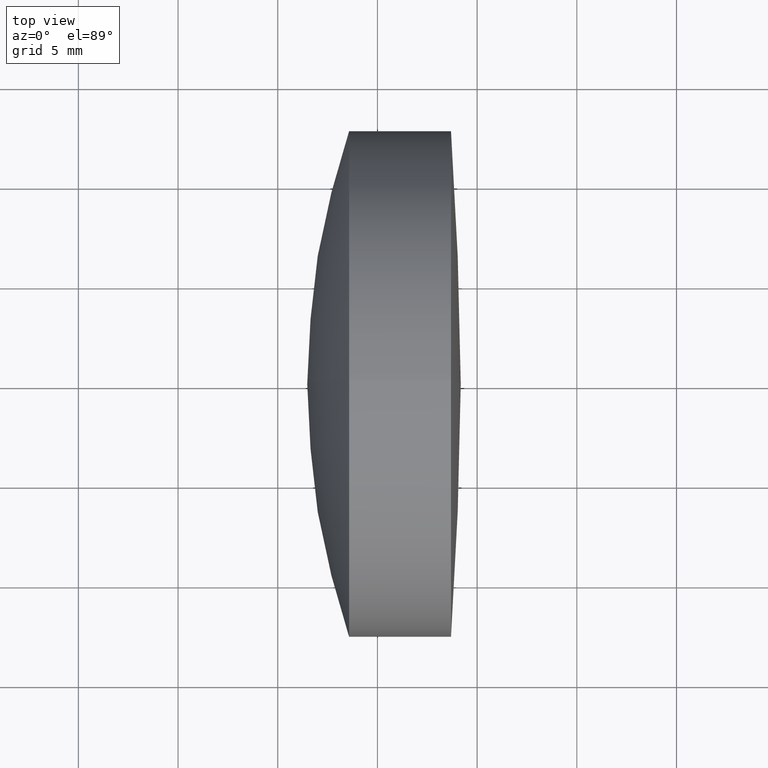
[diagram: clean part render]
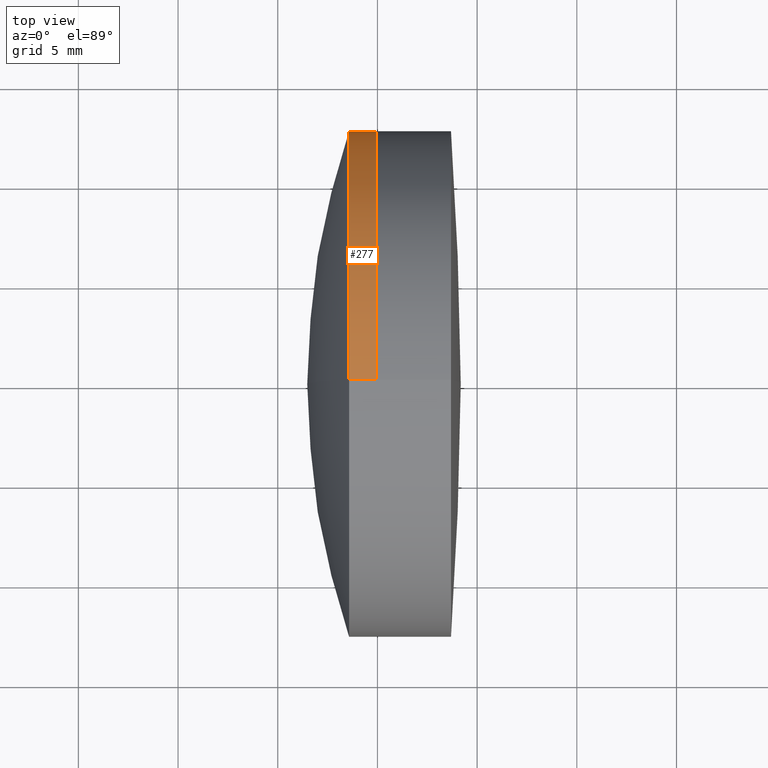
[diagram: same view with one face highlighted and labeled with its STEP entity id]
A machine part, top view. The second image highlights one B-rep face of the part: STEP entity #277.
In plain terms, the highlighted cylindrical surface (partial cylindrical patch) has radius 12.7 mm, axis along (-1, -0, -0).
Its self-contained STEP definition (entity closure, byte-faithful):
#6 = CARTESIAN_POINT ( 'NONE',  ( 294.9373187479075700, 1.555301434917139400E-015, -12.70000000000000800 ) ) ;
#30 = CARTESIAN_POINT ( 'NONE',  ( 294.9373187479075700, 0.0000000000000000000, 12.70000000000000800 ) ) ;
#38 = DIRECTION ( 'NONE',  ( -1.000000000000000000, -0.0000000000000000000, -0.0000000000000000000 ) ) ;
#51 = VERTEX_POINT ( 'NONE', #229 ) ;
#55 = CARTESIAN_POINT ( 'NONE',  ( 124.5233095260452400, 0.0000000000000000000, 0.0000000000000000000 ) ) ;
#57 = ORIENTED_EDGE ( 'NONE', *, *, #137, .T. ) ;
#58 = DIRECTION ( 'NONE',  ( -1.000000000000000000, -0.0000000000000000000, -0.0000000000000000000 ) ) ;
#59 = VERTEX_POINT ( 'NONE', #279 ) ;
#65 = DIRECTION ( 'NONE',  ( -1.000000000000000000, -0.0000000000000000000, -0.0000000000000000000 ) ) ;
#71 = EDGE_CURVE ( 'NONE', #59, #51, #306, .T. ) ;
#73 = EDGE_LOOP ( 'NONE', ( #153, #57, #133, #161 ) ) ;
#107 = AXIS2_PLACEMENT_3D ( 'NONE', #275, #249, #303 ) ;
#114 = CIRCLE ( 'NONE', #107, 12.70000000000000800 ) ;
#130 = VECTOR ( 'NONE', #58, 1000.000000000000000 ) ;
#132 = EDGE_CURVE ( 'NONE', #307, #59, #261, .T. ) ;
#133 = ORIENTED_EDGE ( 'NONE', *, *, #71, .F. ) ;
#134 = CYLINDRICAL_SURFACE ( 'NONE', #240, 12.70000000000000800 ) ;
#137 = EDGE_CURVE ( 'NONE', #187, #51, #323, .T. ) ;
#146 = EDGE_CURVE ( 'NONE', #307, #187, #114, .T. ) ;
#153 = ORIENTED_EDGE ( 'NONE', *, *, #146, .T. ) ;
#154 = FACE_OUTER_BOUND ( 'NONE', #73, .T. ) ;
#161 = ORIENTED_EDGE ( 'NONE', *, *, #132, .F. ) ;
#187 = VERTEX_POINT ( 'NONE', #6 ) ;
#188 = VECTOR ( 'NONE', #38, 1000.000000000000000 ) ;
#200 = CARTESIAN_POINT ( 'NONE',  ( 124.5233095260452400, 1.555301434917139400E-015, -12.70000000000000800 ) ) ;
#222 = DIRECTION ( 'NONE',  ( 0.0000000000000000000, 0.0000000000000000000, 1.000000000000000000 ) ) ;
#228 = CARTESIAN_POINT ( 'NONE',  ( 124.5233095260452400, 0.0000000000000000000, 12.70000000000000800 ) ) ;
#229 = CARTESIAN_POINT ( 'NONE',  ( 293.5774349548790400, 0.0000000000000000000, -12.69999999999999900 ) ) ;
#238 = DIRECTION ( 'NONE',  ( -1.000000000000000000, -0.0000000000000000000, -0.0000000000000000000 ) ) ;
#239 = DIRECTION ( 'NONE',  ( 0.0000000000000000000, 0.0000000000000000000, 1.000000000000000000 ) ) ;
#240 = AXIS2_PLACEMENT_3D ( 'NONE', #55, #238, #239 ) ;
#249 = DIRECTION ( 'NONE',  ( -1.000000000000000000, -0.0000000000000000000, -0.0000000000000000000 ) ) ;
#253 = CARTESIAN_POINT ( 'NONE',  ( 293.5774349548790400, 0.0000000000000000000, 0.0000000000000000000 ) ) ;
#261 = LINE ( 'NONE', #228, #188 ) ;
#275 = CARTESIAN_POINT ( 'NONE',  ( 294.9373187479075700, 0.0000000000000000000, 0.0000000000000000000 ) ) ;
#277 = ADVANCED_FACE ( 'NONE', ( #154 ), #134, .T. ) ;
#279 = CARTESIAN_POINT ( 'NONE',  ( 293.5774349548790400, -1.555301434917138200E-015, 12.70000000000000600 ) ) ;
#290 = AXIS2_PLACEMENT_3D ( 'NONE', #253, #65, #222 ) ;
#303 = DIRECTION ( 'NONE',  ( 0.0000000000000000000, 0.0000000000000000000, 1.000000000000000000 ) ) ;
#306 = CIRCLE ( 'NONE', #290, 12.70000000000000800 ) ;
#307 = VERTEX_POINT ( 'NONE', #30 ) ;
#323 = LINE ( 'NONE', #200, #130 ) ;